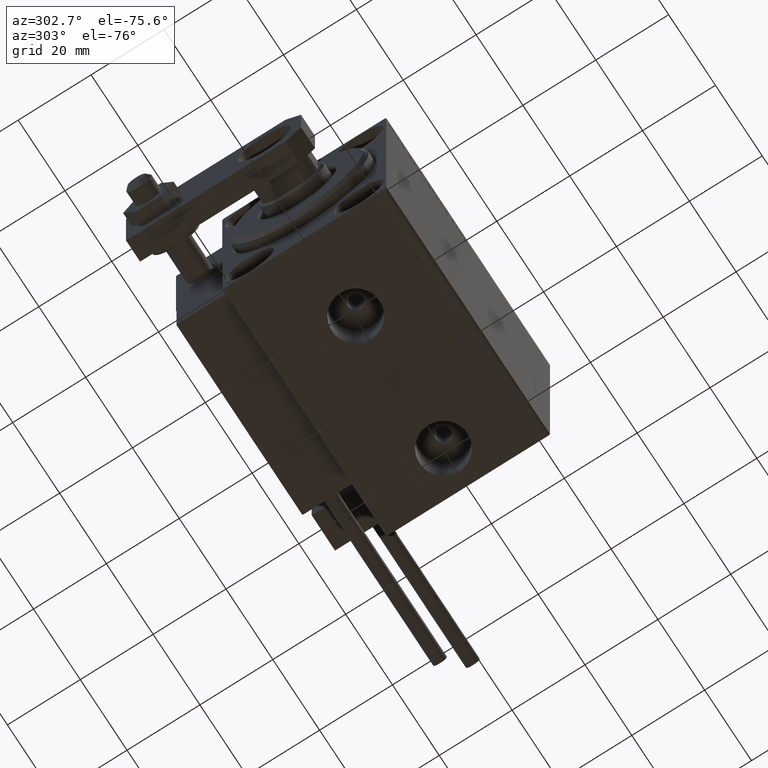
[diagram: clean part render]
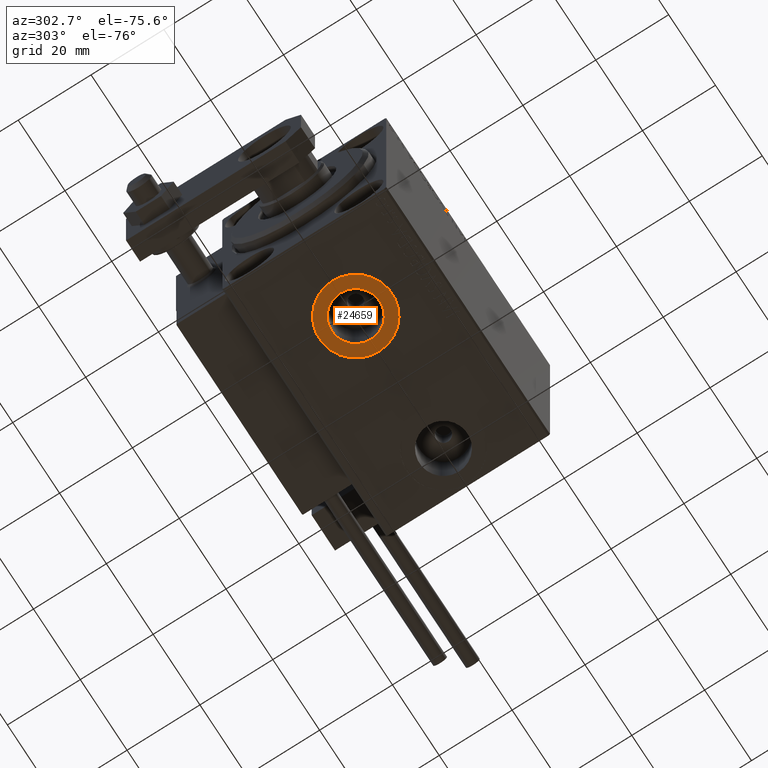
[diagram: same view with one face highlighted and labeled with its STEP entity id]
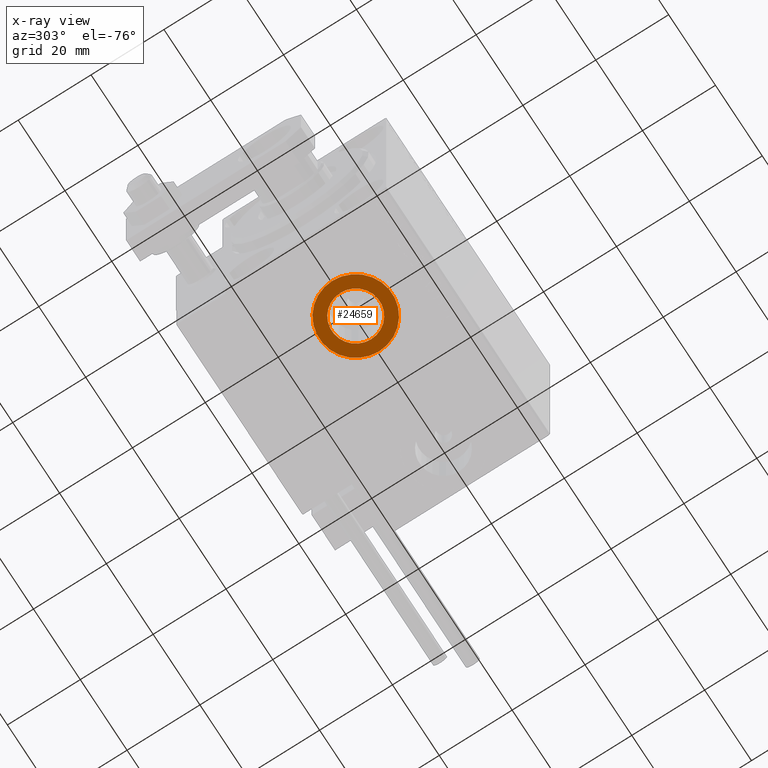
[diagram: x-ray of the same camera — body ghosted, the highlighted face saturated]
A machine part, auxiliary view. The second image highlights one B-rep face of the part: STEP entity #24659.
The next image is the same camera in x-ray: the body ghosted, the highlighted face saturated — about 0% of this face is hidden behind the body in this view.
In plain terms, the highlighted planar face has unit normal (0, 0, -1).
Its self-contained STEP definition (entity closure, byte-faithful):
#1813 = CARTESIAN_POINT ( 'NONE',  ( 15.41999999999999638, -3.594347949397319039E-15, -32.40000000000000568 ) ) ;
#2269 = DIRECTION ( 'NONE',  ( 0.000000000000000000, 0.000000000000000000, -1.000000000000000000 ) ) ;
#2509 = CARTESIAN_POINT ( 'NONE',  ( 22.00000000000000000, -3.594347949397319039E-15, -32.40000000000000568 ) ) ;
#2768 = DIRECTION ( 'NONE',  ( -1.000000000000000000, 0.000000000000000000, 0.000000000000000000 ) ) ;
#6822 = AXIS2_PLACEMENT_3D ( 'NONE', #2509, #2269, #2768 ) ;
#7222 = ORIENTED_EDGE ( 'NONE', *, *, #8302, .T. ) ;
#7491 = DIRECTION ( 'NONE',  ( -1.000000000000000000, 0.000000000000000000, -0.000000000000000000 ) ) ;
#8302 = EDGE_CURVE ( 'NONE', #26607, #39422, #44289, .T. ) ;
#8471 = EDGE_CURVE ( 'NONE', #23284, #47006, #47527, .T. ) ;
#10650 = EDGE_CURVE ( 'NONE', #39422, #26607, #22401, .T. ) ;
#12975 = DIRECTION ( 'NONE',  ( 0.000000000000000000, 0.000000000000000000, -1.000000000000000000 ) ) ;
#14011 = ORIENTED_EDGE ( 'NONE', *, *, #8471, .F. ) ;
#15019 = ORIENTED_EDGE ( 'NONE', *, *, #33317, .F. ) ;
#15135 = FACE_BOUND ( 'NONE', #19326, .T. ) ;
#16101 = DIRECTION ( 'NONE',  ( -1.000000000000000000, 0.000000000000000000, 0.000000000000000000 ) ) ;
#17790 = CARTESIAN_POINT ( 'NONE',  ( 22.00000000000000000, -3.594347949397319039E-15, -32.40000000000000568 ) ) ;
#19326 = EDGE_LOOP ( 'NONE', ( #14011, #15019 ) ) ;
#20412 = CARTESIAN_POINT ( 'NONE',  ( 32.00000000000000000, -2.369701150249966375E-15, -32.40000000000000568 ) ) ;
#20850 = DIRECTION ( 'NONE',  ( -1.000000000000000000, 0.000000000000000000, 0.000000000000000000 ) ) ;
#22401 = CIRCLE ( 'NONE', #38641, 10.00000000000000000 ) ;
#23284 = VERTEX_POINT ( 'NONE', #1813 ) ;
#23502 = PLANE ( 'NONE',  #26873 ) ;
#23933 = AXIS2_PLACEMENT_3D ( 'NONE', #34419, #42065, #46393 ) ;
#24659 = ADVANCED_FACE ( 'NONE', ( #15135, #42336 ), #23502, .T. ) ;
#25561 = AXIS2_PLACEMENT_3D ( 'NONE', #31614, #39743, #16101 ) ;
#25943 = CARTESIAN_POINT ( 'NONE',  ( 11.99999999999999822, -3.594347949397319039E-15, -32.40000000000000568 ) ) ;
#26087 = ORIENTED_EDGE ( 'NONE', *, *, #10650, .T. ) ;
#26511 = CARTESIAN_POINT ( 'NONE',  ( 28.58000000000000185, -2.788530355558360786E-15, -32.40000000000000568 ) ) ;
#26607 = VERTEX_POINT ( 'NONE', #25943 ) ;
#26873 = AXIS2_PLACEMENT_3D ( 'NONE', #35192, #38772, #7491 ) ;
#31614 = CARTESIAN_POINT ( 'NONE',  ( 22.00000000000000000, -3.594347949397319039E-15, -32.40000000000000568 ) ) ;
#33317 = EDGE_CURVE ( 'NONE', #47006, #23284, #39309, .T. ) ;
#34419 = CARTESIAN_POINT ( 'NONE',  ( 22.00000000000000000, -3.594347949397319039E-15, -32.40000000000000568 ) ) ;
#35192 = CARTESIAN_POINT ( 'NONE',  ( 0.000000000000000000, 0.000000000000000000, -32.40000000000000568 ) ) ;
#38641 = AXIS2_PLACEMENT_3D ( 'NONE', #17790, #12975, #20850 ) ;
#38772 = DIRECTION ( 'NONE',  ( 0.000000000000000000, 0.000000000000000000, -1.000000000000000000 ) ) ;
#39309 = CIRCLE ( 'NONE', #6822, 6.580000000000002736 ) ;
#39422 = VERTEX_POINT ( 'NONE', #20412 ) ;
#39670 = EDGE_LOOP ( 'NONE', ( #7222, #26087 ) ) ;
#39743 = DIRECTION ( 'NONE',  ( 0.000000000000000000, 0.000000000000000000, -1.000000000000000000 ) ) ;
#42065 = DIRECTION ( 'NONE',  ( 0.000000000000000000, 0.000000000000000000, -1.000000000000000000 ) ) ;
#42336 = FACE_OUTER_BOUND ( 'NONE', #39670, .T. ) ;
#44289 = CIRCLE ( 'NONE', #23933, 10.00000000000000000 ) ;
#46393 = DIRECTION ( 'NONE',  ( -1.000000000000000000, 0.000000000000000000, 0.000000000000000000 ) ) ;
#47006 = VERTEX_POINT ( 'NONE', #26511 ) ;
#47527 = CIRCLE ( 'NONE', #25561, 6.580000000000002736 ) ;